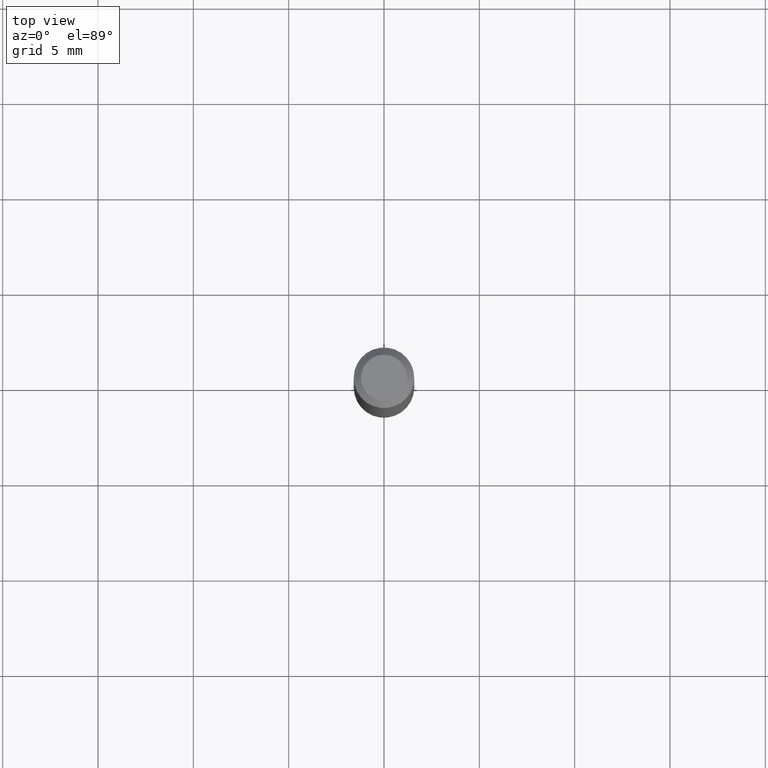
[diagram: clean part render]
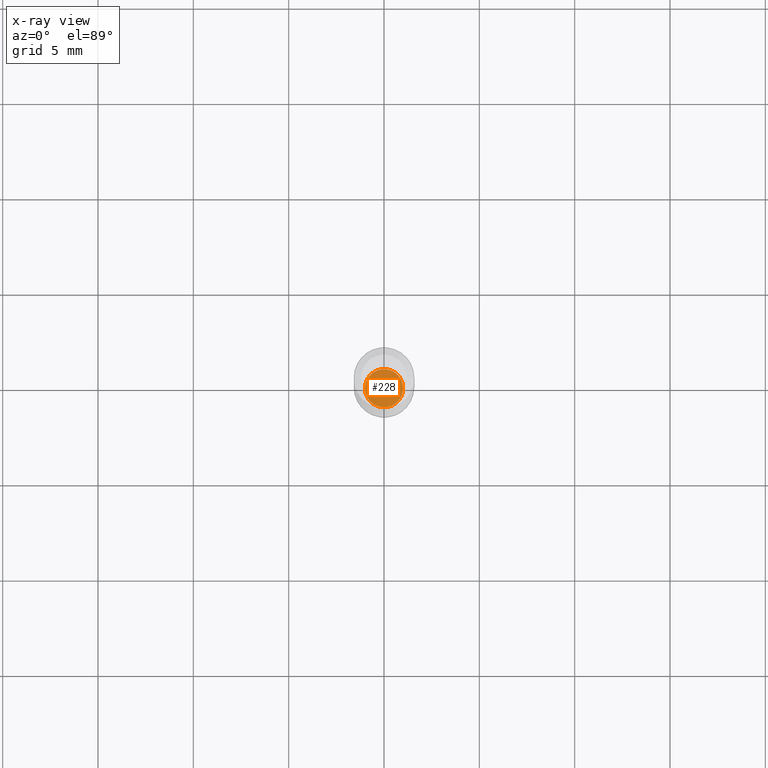
[diagram: x-ray — body ghosted, one internal face saturated and labeled with its STEP entity id]
A machine part, top view, then the same camera in x-ray: the body is ghosted and one INTERNAL B-rep face — a face not visible from any outside direction — is saturated and labeled: STEP entity #228.
In plain terms, the highlighted planar face has unit normal (-0, 0, 1).
Its self-contained STEP definition (entity closure, byte-faithful):
#5 = DIRECTION ( 'NONE',  ( 1.000000000000000000, -6.982962677686265922E-15, 4.876176775795935793E-29 ) ) ;
#63 = CARTESIAN_POINT ( 'NONE',  ( 0.03949999999999997263, -4.675093512710971939E-15, -1.260000000000000231 ) ) ;
#75 = AXIS2_PLACEMENT_3D ( 'NONE', #431, #150, #158 ) ;
#82 = ORIENTED_EDGE ( 'NONE', *, *, #288, .F. ) ;
#96 = ORIENTED_EDGE ( 'NONE', *, *, #430, .F. ) ;
#97 = DIRECTION ( 'NONE',  ( -2.445468806185136597E-29, 3.491481338843145583E-15, 1.000000000000000000 ) ) ;
#127 = CARTESIAN_POINT ( 'NONE',  ( 3.081290695793272291E-29, -4.399266486942364120E-15, -1.260000000000000231 ) ) ;
#135 = EDGE_LOOP ( 'NONE', ( #82, #96 ) ) ;
#150 = DIRECTION ( 'NONE',  ( -2.445468806185136597E-29, 3.491481338843145583E-15, 1.000000000000000000 ) ) ;
#158 = DIRECTION ( 'NONE',  ( 1.000000000000000000, -6.982962677686276177E-15, 0.000000000000000000 ) ) ;
#164 = FACE_OUTER_BOUND ( 'NONE', #135, .T. ) ;
#178 = AXIS2_PLACEMENT_3D ( 'NONE', #127, #97, #495 ) ;
#228 = ADVANCED_FACE ( 'NONE', ( #164 ), #239, .F. ) ;
#239 = PLANE ( 'NONE',  #404 ) ;
#252 = VERTEX_POINT ( 'NONE', #273 ) ;
#273 = CARTESIAN_POINT ( 'NONE',  ( -0.03949999999999997263, -4.115952879143013491E-15, -1.260000000000000231 ) ) ;
#288 = EDGE_CURVE ( 'NONE', #410, #252, #503, .T. ) ;
#349 = CARTESIAN_POINT ( 'NONE',  ( 3.081290695793272291E-29, -4.399266486942364120E-15, -1.260000000000000231 ) ) ;
#395 = DIRECTION ( 'NONE',  ( -2.438088387897960049E-29, 3.491481338843145188E-15, 1.000000000000000000 ) ) ;
#404 = AXIS2_PLACEMENT_3D ( 'NONE', #349, #395, #5 ) ;
#410 = VERTEX_POINT ( 'NONE', #63 ) ;
#430 = EDGE_CURVE ( 'NONE', #252, #410, #438, .T. ) ;
#431 = CARTESIAN_POINT ( 'NONE',  ( 3.081290695793272291E-29, -4.399266486942364120E-15, -1.260000000000000231 ) ) ;
#438 = CIRCLE ( 'NONE', #178, 0.03949999999999997263 ) ;
#495 = DIRECTION ( 'NONE',  ( 1.000000000000000000, -6.982962677686276177E-15, 0.000000000000000000 ) ) ;
#503 = CIRCLE ( 'NONE', #75, 0.03949999999999997263 ) ;